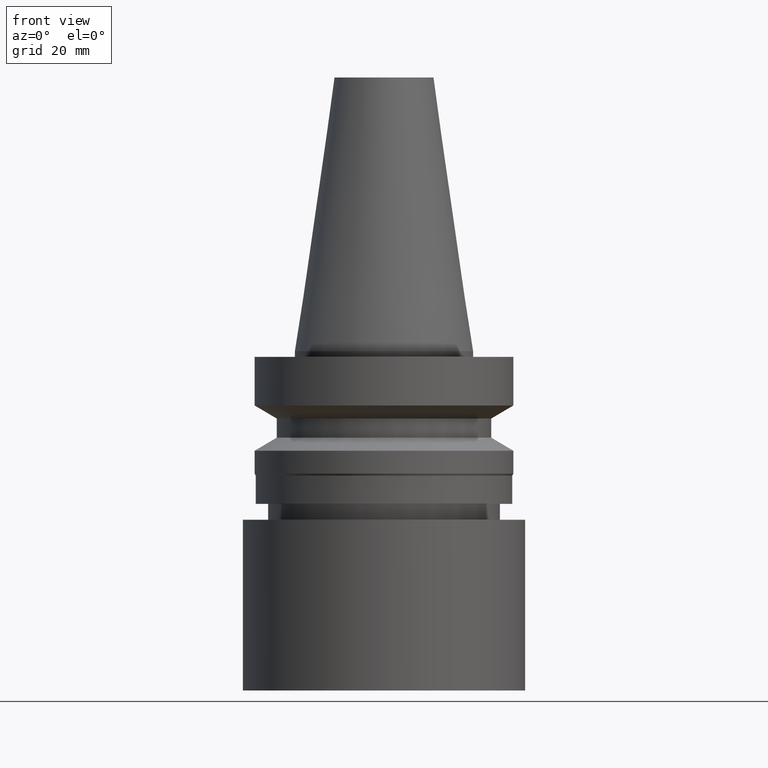
[diagram: clean part render]
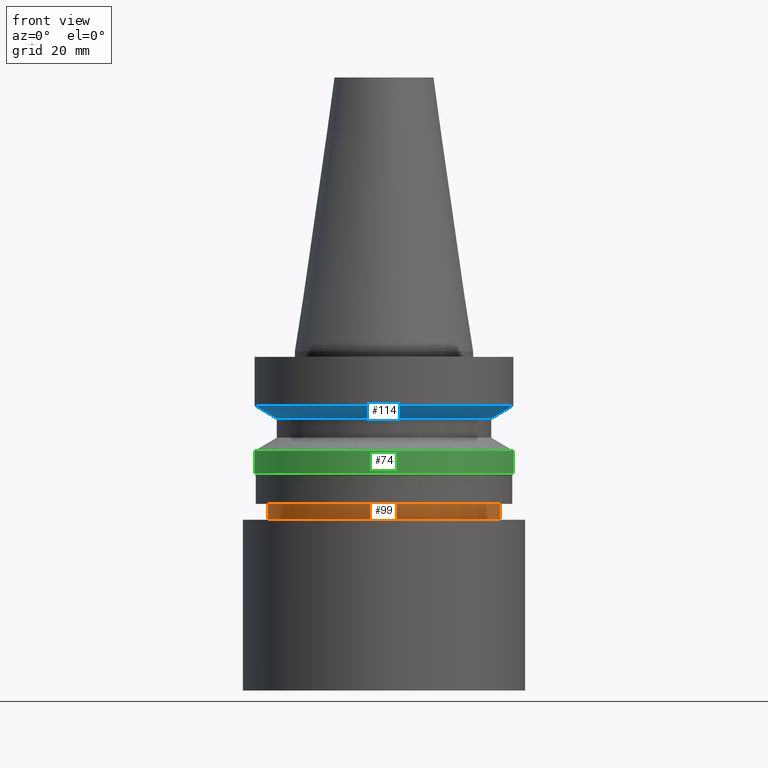
[diagram: same view with three faces highlighted in distinct colors, each labeled with its STEP entity id]
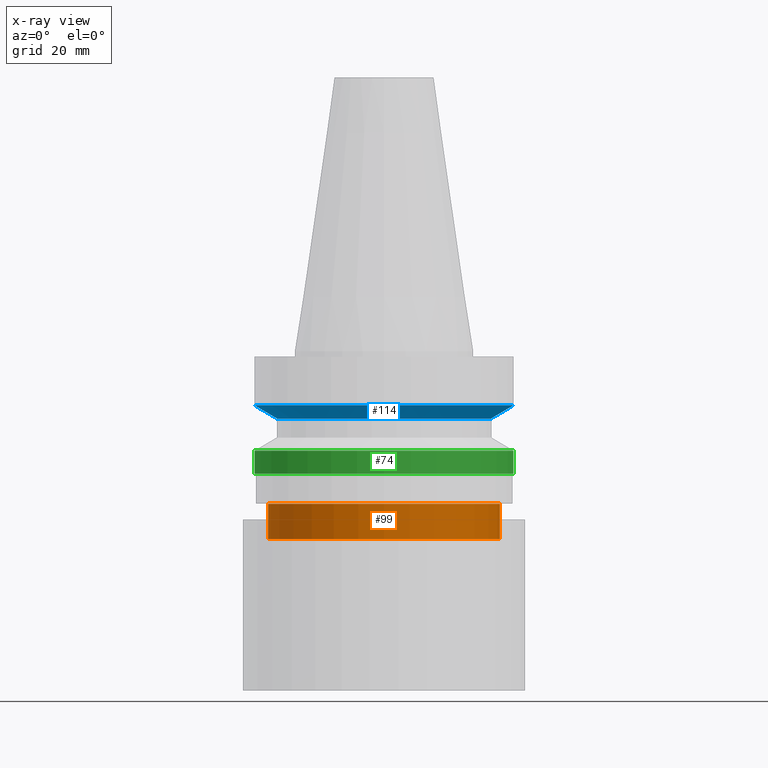
[diagram: x-ray of the same camera — body ghosted, the three highlighted faces saturated]
A machine part, front view with three faces highlighted in distinct colors.
The next image is the same camera in x-ray (body ghosted, the three faces saturated) — at least one of them is partly hidden behind the body in this view.
Their STEP definitions:

[orange] entity #99 — the highlighted cylindrical surface (bore or boss wall) has radius 20.5 mm, axis along (0, 0, -1).
#99=ADVANCED_FACE('Unnamed[1]',(#234,#235),#236,.T.);
#108=EDGE_CURVE('Unnamed[1]',#249,#249,#250,.T.);
#146=EDGE_CURVE('Unnamed[1]',#307,#307,#308,.T.);
#234=FACE_BOUND('',#412,.T.);
#235=FACE_BOUND('',#413,.T.);
#236=CYLINDRICAL_SURFACE('',#414,20.4999999999961);
#249=VERTEX_POINT('',#431);
#250=CIRCLE('',#432,20.5000000000012);
#307=VERTEX_POINT('',#502);
#308=CIRCLE('',#503,20.4999999999911);
#412=EDGE_LOOP('',(#600));
#413=EDGE_LOOP('',(#601));
#414=AXIS2_PLACEMENT_3D('',#602,#603,#604);
#431=CARTESIAN_POINT('',(2.03361678293588E-015,20.5000000000012,-33.211482434801));
#432=AXIS2_PLACEMENT_3D('',#617,#618,#619);
#502=CARTESIAN_POINT('',(1.65328282719226E-015,20.4999999999911,-27.0001575694044));
#503=AXIS2_PLACEMENT_3D('',#682,#683,#684);
#600=ORIENTED_EDGE('',*,*,#108,.F.);
#601=ORIENTED_EDGE('',*,*,#146,.T.);
#602=CARTESIAN_POINT('',(1.84344980506407E-015,3.68689961012814E-015,-30.1058200021027));
#603=DIRECTION('',(6.12323399573677E-017,1.22464679914735E-016,-1.0));
#604=DIRECTION('',(-1.23259516440783E-032,1.0,1.22464679914735E-016));
#617=CARTESIAN_POINT('',(2.03361678293588E-015,4.06723356587176E-015,-33.211482434801));
#618=DIRECTION('',(6.12323399573677E-017,1.22464679914735E-016,-1.0));
#619=DIRECTION('',(-1.23259516440783E-032,1.0,1.22464679914735E-016));
#682=CARTESIAN_POINT('',(1.65328282719226E-015,3.30656565438452E-015,-27.0001575694044));
#683=DIRECTION('',(6.12323399573677E-017,1.22464679914735E-016,-1.0));
#684=DIRECTION('',(-1.23259516440783E-032,1.0,1.22464679914735E-016));

[blue] entity #114 — the highlighted conical surface has half-angle 60 deg.
#88=EDGE_CURVE('Unnamed[1]',#217,#217,#218,.T.);
#114=ADVANCED_FACE('Unnamed[1]',(#258,#259),#260,.T.);
#151=EDGE_CURVE('Unnamed[1]',#315,#315,#316,.T.);
#217=VERTEX_POINT('',#391);
#218=CIRCLE('',#392,19.0);
#258=FACE_BOUND('',#442,.T.);
#259=FACE_BOUND('',#443,.T.);
#260=CONICAL_SURFACE('',#444,21.0,1.04719755058881);
#315=VERTEX_POINT('',#512);
#316=CIRCLE('',#513,23.0);
#391=CARTESIAN_POINT('',(7.29240495619202E-016,19.0,-11.90940108));
#392=AXIS2_PLACEMENT_3D('',#581,#582,#583);
#442=EDGE_LOOP('',(#627));
#443=EDGE_LOOP('',(#628));
#444=AXIS2_PLACEMENT_3D('',#629,#630,#631);
#512=CARTESIAN_POINT('',(5.87830463590729E-016,23.0,-9.59999999999999));
#513=AXIS2_PLACEMENT_3D('',#691,#692,#693);
#581=CARTESIAN_POINT('',(7.29240495619202E-016,1.4584809912384E-015,-11.90940108));
#582=DIRECTION('',(6.12323399573677E-017,1.22464679914735E-016,-1.0));
#583=DIRECTION('',(-1.23259516440783E-032,1.0,1.22464679914735E-016));
#627=ORIENTED_EDGE('',*,*,#88,.F.);
#628=ORIENTED_EDGE('',*,*,#151,.T.);
#629=CARTESIAN_POINT('',(6.58535479604966E-016,1.31707095920993E-015,-10.75470054));
#630=DIRECTION('',(-6.12323399573677E-017,-1.22464679914735E-016,1.0));
#631=DIRECTION('',(-1.23259516440783E-032,1.0,1.22464679914735E-016));
#691=CARTESIAN_POINT('',(5.87830463590729E-016,1.17566092718146E-015,-9.59999999999999));
#692=DIRECTION('',(6.12323399573677E-017,1.22464679914735E-016,-1.0));
#693=DIRECTION('',(-1.23259516440783E-032,1.0,1.22464679914735E-016));

[green] entity #74 — the highlighted cylindrical surface (bore or boss wall) has radius 23 mm, axis along (0, 0, -1).
#74=ADVANCED_FACE('Unnamed[1]',(#195,#196),#197,.T.);
#103=EDGE_CURVE('Unnamed[1]',#241,#241,#242,.T.);
#153=EDGE_CURVE('Unnamed[1]',#318,#318,#319,.T.);
#195=FACE_BOUND('',#363,.T.);
#196=FACE_BOUND('',#364,.T.);
#197=CYLINDRICAL_SURFACE('',#365,23.0);
#241=VERTEX_POINT('',#421);
#242=CIRCLE('',#422,23.0);
#318=VERTEX_POINT('',#516);
#319=CIRCLE('',#517,23.0);
#363=EDGE_LOOP('',(#556));
#364=EDGE_LOOP('',(#557));
#365=AXIS2_PLACEMENT_3D('',#558,#559,#560);
#421=CARTESIAN_POINT('',(1.32589997428773E-015,23.0,-21.6535898384886));
#422=AXIS2_PLACEMENT_3D('',#608,#609,#610);
#516=CARTESIAN_POINT('',(1.07768918324967E-015,23.0,-17.6));
#517=AXIS2_PLACEMENT_3D('',#694,#695,#696);
#556=ORIENTED_EDGE('',*,*,#103,.F.);
#557=ORIENTED_EDGE('',*,*,#153,.T.);
#558=CARTESIAN_POINT('',(1.2017945787687E-015,2.4035891575374E-015,-19.6267949192443));
#559=DIRECTION('',(6.12323399573677E-017,1.22464679914735E-016,-1.0));
#560=DIRECTION('',(-1.23259516440783E-032,1.0,1.22464679914735E-016));
#608=CARTESIAN_POINT('',(1.32589997428773E-015,2.65179994857547E-015,-21.6535898384886));
#609=DIRECTION('',(6.12323399573677E-017,1.22464679914735E-016,-1.0));
#610=DIRECTION('',(-1.23259516440783E-032,1.0,1.22464679914735E-016));
#694=CARTESIAN_POINT('',(1.07768918324967E-015,2.15537836649934E-015,-17.6));
#695=DIRECTION('',(6.12323399573677E-017,1.22464679914735E-016,-1.0));
#696=DIRECTION('',(-1.23259516440783E-032,1.0,1.22464679914735E-016));